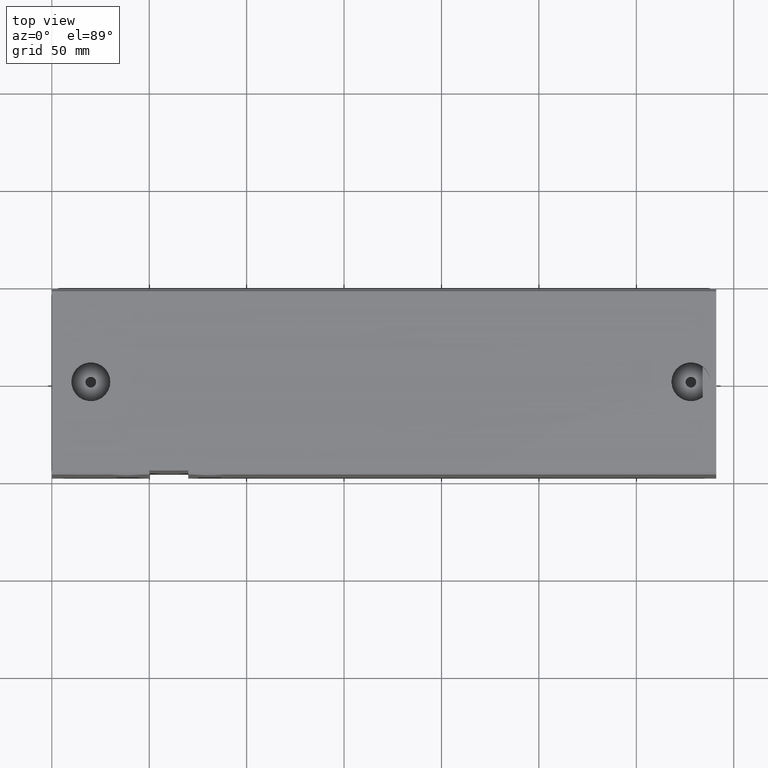
[diagram: clean part render]
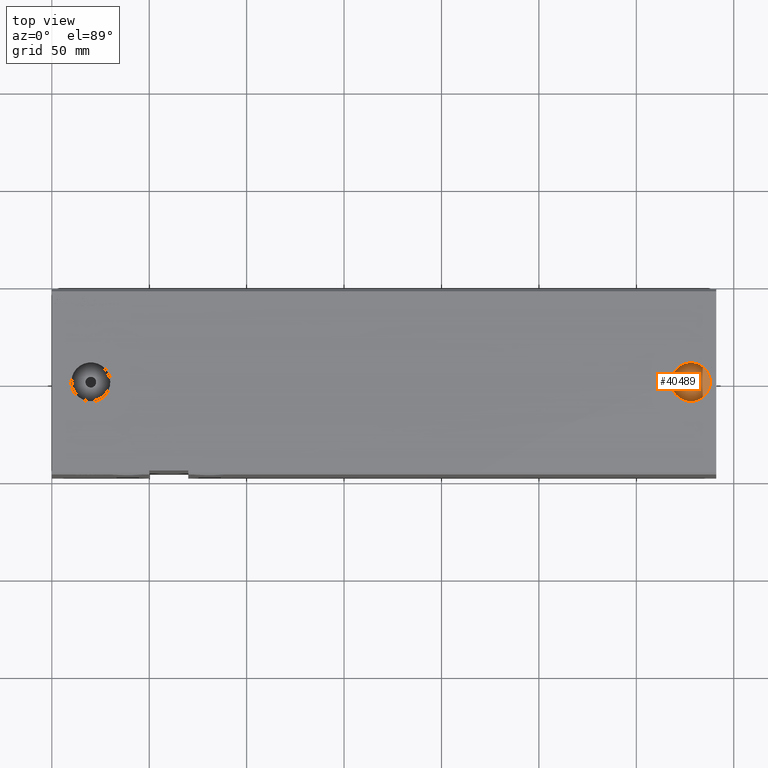
[diagram: same view with one face highlighted and labeled with its STEP entity id]
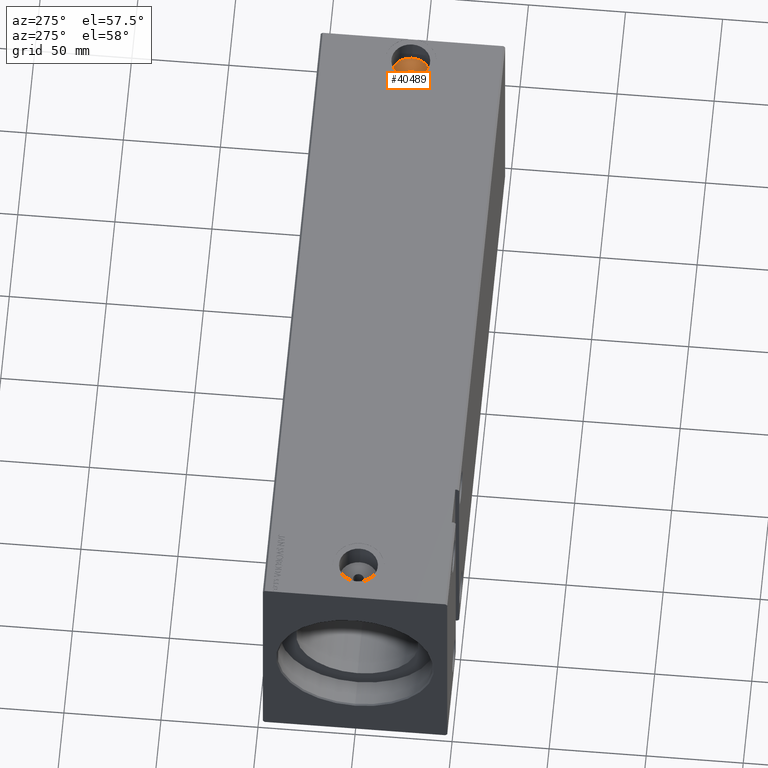
[diagram: same view with one face highlighted and labeled with its STEP entity id]
A machine part, top view. The second image highlights one B-rep face of the part: STEP entity #40489.
A second angle (auxiliary view) of the same face is appended — the face is thin or edge-on in the first view.
In plain terms, the highlighted planar face has unit normal (0, 0, 1).
Its self-contained STEP definition (entity closure, byte-faithful):
#1169 = DIRECTION ( 'NONE',  ( 0.000000000000000000, 0.000000000000000000, 1.000000000000000000 ) ) ;
#4156 = ORIENTED_EDGE ( 'NONE', *, *, #32083, .T. ) ;
#7395 = EDGE_CURVE ( 'NONE', #27147, #25136, #21485, .T. ) ;
#9244 = CARTESIAN_POINT ( 'NONE',  ( 325.2500000000000568, -3.789161962022304753E-15, 49.39999999999998437 ) ) ;
#9338 = DIRECTION ( 'NONE',  ( 1.000000000000000000, 0.000000000000000000, 0.000000000000000000 ) ) ;
#10069 = ORIENTED_EDGE ( 'NONE', *, *, #25204, .F. ) ;
#10669 = AXIS2_PLACEMENT_3D ( 'NONE', #11038, #29985, #36772 ) ;
#11038 = CARTESIAN_POINT ( 'NONE',  ( 328.0000000000000000, -4.125939831787824832E-15, 49.39999999999998437 ) ) ;
#11210 = CIRCLE ( 'NONE', #21400, 2.749999999999974687 ) ;
#11711 = EDGE_LOOP ( 'NONE', ( #17136, #10069 ) ) ;
#12991 = CARTESIAN_POINT ( 'NONE',  ( 328.0000000000000000, -4.125939831787824832E-15, 49.39999999999998437 ) ) ;
#13460 = CARTESIAN_POINT ( 'NONE',  ( 330.7500000000000000, -4.125939831787824832E-15, 49.39999999999998437 ) ) ;
#13620 = DIRECTION ( 'NONE',  ( 0.000000000000000000, 0.000000000000000000, 1.000000000000000000 ) ) ;
#14672 = AXIS2_PLACEMENT_3D ( 'NONE', #35268, #34642, #9338 ) ;
#14900 = DIRECTION ( 'NONE',  ( 1.000000000000000000, 0.000000000000000000, 0.000000000000000000 ) ) ;
#17136 = ORIENTED_EDGE ( 'NONE', *, *, #24437, .F. ) ;
#18096 = CARTESIAN_POINT ( 'NONE',  ( 328.0000000000000000, -4.125939831787824832E-15, 49.39999999999998437 ) ) ;
#18143 = CIRCLE ( 'NONE', #10669, 10.00000000000000888 ) ;
#19169 = PLANE ( 'NONE',  #20278 ) ;
#20067 = AXIS2_PLACEMENT_3D ( 'NONE', #20930, #1169, #36852 ) ;
#20278 = AXIS2_PLACEMENT_3D ( 'NONE', #12991, #13620, #35957 ) ;
#20930 = CARTESIAN_POINT ( 'NONE',  ( 328.0000000000000000, -4.125939831787824832E-15, 49.39999999999998437 ) ) ;
#21400 = AXIS2_PLACEMENT_3D ( 'NONE', #18096, #28078, #14900 ) ;
#21485 = CIRCLE ( 'NONE', #14672, 10.00000000000000888 ) ;
#22571 = FACE_OUTER_BOUND ( 'NONE', #23926, .T. ) ;
#23926 = EDGE_LOOP ( 'NONE', ( #4156, #35763 ) ) ;
#24437 = EDGE_CURVE ( 'NONE', #26381, #28081, #11210, .T. ) ;
#25136 = VERTEX_POINT ( 'NONE', #32832 ) ;
#25204 = EDGE_CURVE ( 'NONE', #28081, #26381, #39748, .T. ) ;
#26381 = VERTEX_POINT ( 'NONE', #13460 ) ;
#26402 = FACE_BOUND ( 'NONE', #11711, .T. ) ;
#27147 = VERTEX_POINT ( 'NONE', #36422 ) ;
#28078 = DIRECTION ( 'NONE',  ( 0.000000000000000000, 0.000000000000000000, 1.000000000000000000 ) ) ;
#28081 = VERTEX_POINT ( 'NONE', #9244 ) ;
#29985 = DIRECTION ( 'NONE',  ( 0.000000000000000000, 0.000000000000000000, 1.000000000000000000 ) ) ;
#32083 = EDGE_CURVE ( 'NONE', #25136, #27147, #18143, .T. ) ;
#32832 = CARTESIAN_POINT ( 'NONE',  ( 338.0000000000000000, -4.125939831787824832E-15, 49.39999999999998437 ) ) ;
#34642 = DIRECTION ( 'NONE',  ( 0.000000000000000000, 0.000000000000000000, 1.000000000000000000 ) ) ;
#35268 = CARTESIAN_POINT ( 'NONE',  ( 328.0000000000000000, -4.125939831787824832E-15, 49.39999999999998437 ) ) ;
#35763 = ORIENTED_EDGE ( 'NONE', *, *, #7395, .T. ) ;
#35957 = DIRECTION ( 'NONE',  ( 1.000000000000000000, 0.000000000000000000, -0.000000000000000000 ) ) ;
#36422 = CARTESIAN_POINT ( 'NONE',  ( 318.0000000000000000, -2.901293032640464673E-15, 49.39999999999998437 ) ) ;
#36772 = DIRECTION ( 'NONE',  ( 1.000000000000000000, 0.000000000000000000, 0.000000000000000000 ) ) ;
#36852 = DIRECTION ( 'NONE',  ( 1.000000000000000000, 0.000000000000000000, 0.000000000000000000 ) ) ;
#39748 = CIRCLE ( 'NONE', #20067, 2.749999999999974687 ) ;
#40489 = ADVANCED_FACE ( 'NONE', ( #26402, #22571 ), #19169, .T. ) ;